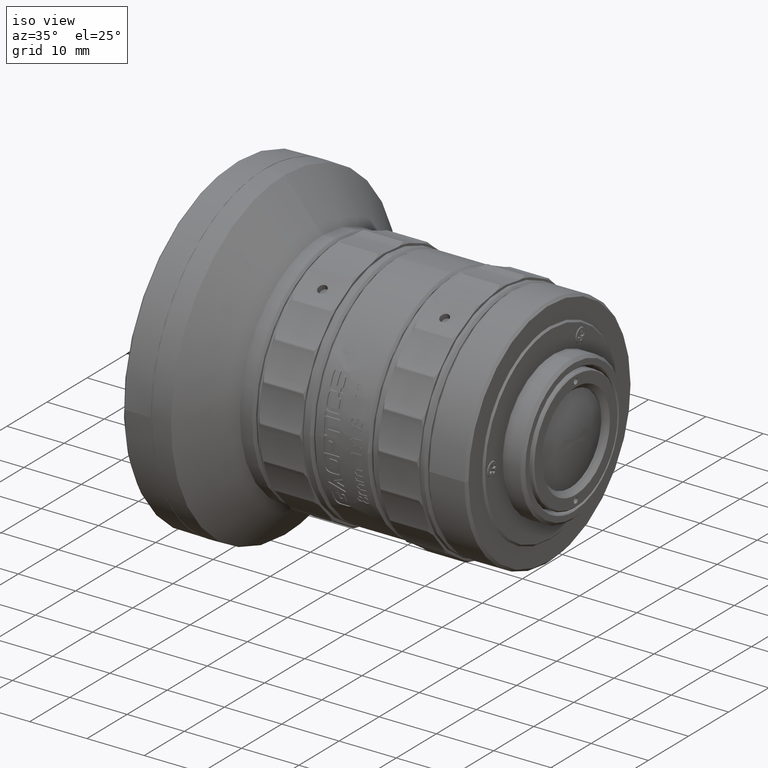
[diagram: clean part render]
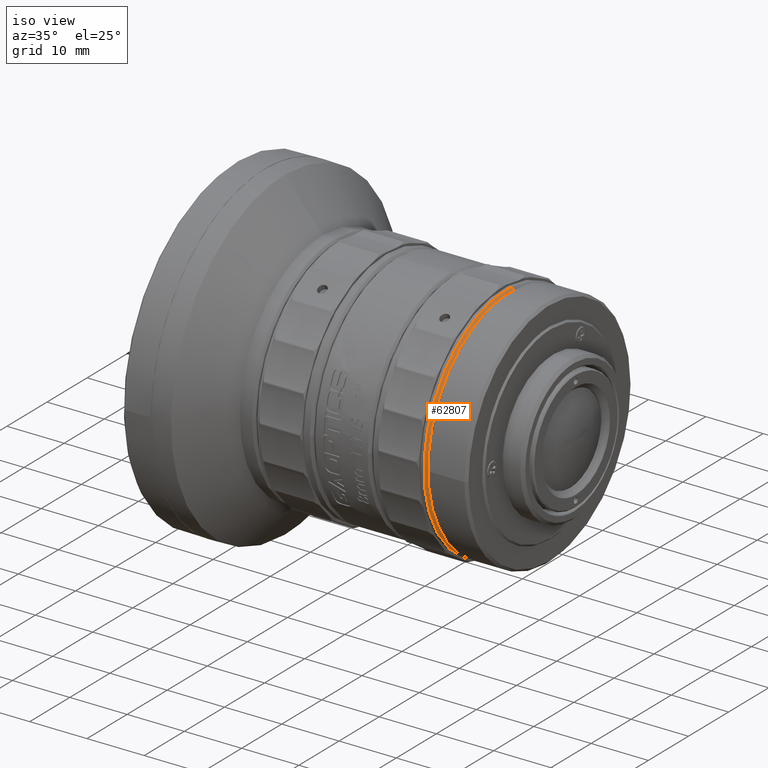
[diagram: same view with one face highlighted and labeled with its STEP entity id]
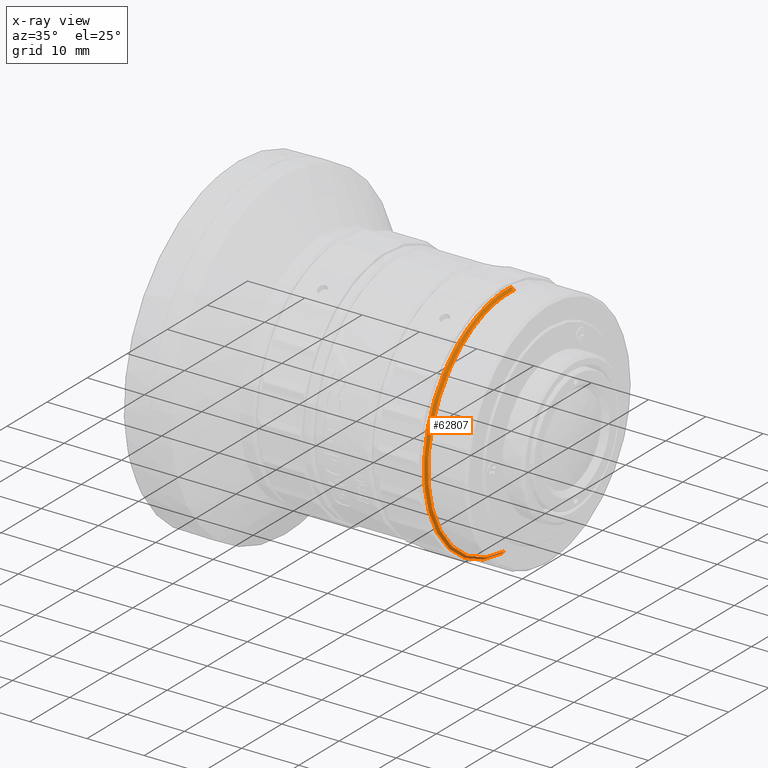
[diagram: x-ray of the same camera — body ghosted, the highlighted face saturated]
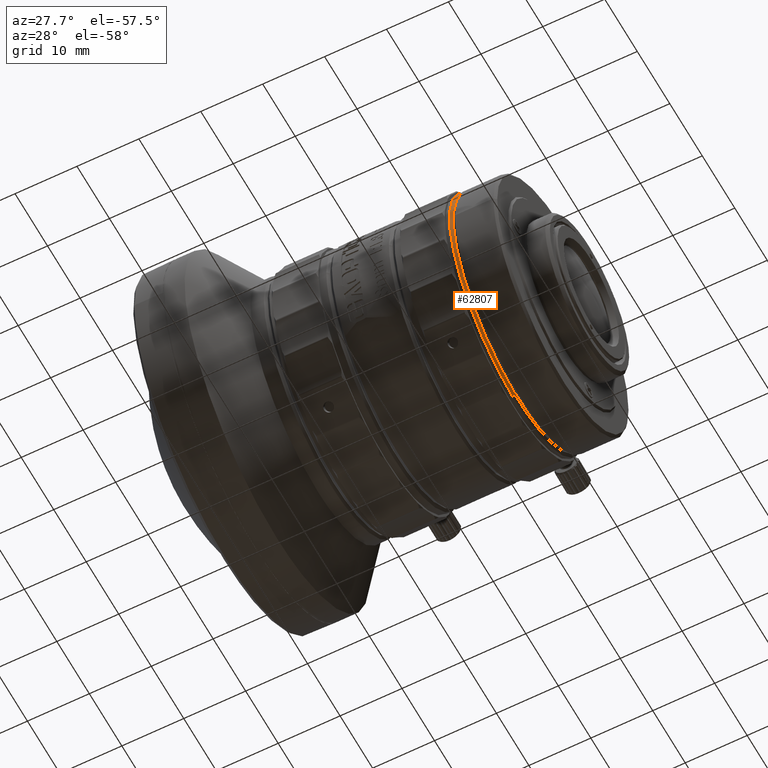
[diagram: same view with one face highlighted and labeled with its STEP entity id]
A machine part, iso view. The second image highlights one B-rep face of the part: STEP entity #62807.
The next image is the same camera in x-ray: the body ghosted, the highlighted face saturated — about 2% of this face is hidden behind the body in this view.
A second angle (auxiliary view) of the same face is appended — the face is thin or edge-on in the first view.
In plain terms, the highlighted face is a freeform B-spline surface patch.
Its self-contained STEP definition (entity closure, byte-faithful):
#1167 = CARTESIAN_POINT ( 'NONE',  ( 44.64000000000000057, -1.179232954356622010, -20.16555006722754584 ) ) ;
#1231 = CARTESIAN_POINT ( 'NONE',  ( 44.64000000000000057, 1.179232947634770046, 20.16555006762059676 ) ) ;
#4321 = VERTEX_POINT ( 'NONE', #46497 ) ;
#5441 = CARTESIAN_POINT ( 'NONE',  ( 44.64000000000000057, -1.179232954356622010, -20.16555006722754584 ) ) ;
#6462 = CARTESIAN_POINT ( 'NONE',  ( 44.24000000000000199, 1.202584095153414134, 20.56486789410800142 ) ) ;
#11662 = CARTESIAN_POINT ( 'NONE',  ( 44.64000000000000057, 1.179232947634770046, 20.16555006762059676 ) ) ;
#11841 = ORIENTED_EDGE ( 'NONE', *, *, #36150, .T. ) ;
#13208 = VERTEX_POINT ( 'NONE', #11662 ) ;
#14205 = VERTEX_POINT ( 'NONE', #70817 ) ;
#17465 = FACE_OUTER_BOUND ( 'NONE', #25936, .T. ) ;
#18547 = EDGE_CURVE ( 'NONE', #4321, #14205, #65316, .T. ) ;
#19725 = EDGE_CURVE ( 'NONE', #65245, #13208, #51683, .T. ) ;
#25013 = CARTESIAN_POINT ( 'NONE',  ( 44.64000000000002899, -41.51033307451758247, -17.80708415736319949 ) ) ;
#25936 = EDGE_LOOP ( 'NONE', ( #11841, #50605, #27463, #68446 ) ) ;
#27463 = ORIENTED_EDGE ( 'NONE', *, *, #55862, .F. ) ;
#29183 = CARTESIAN_POINT ( 'NONE',  ( 44.24000000000000199, 1.202584093306830137, 20.56486789421597194 ) ) ;
#29565 = CARTESIAN_POINT ( 'NONE',  ( 44.64000000000000767, -39.15186717325798327, 22.52401596057785227 ) ) ;
#33139 =( BOUNDED_SURFACE ( )  B_SPLINE_SURFACE ( 1, 3, ( 
 ( #34656, #35815, #29565, #40132 ),
 ( #59283, #76559, #59669, #29183 ) ),
 .UNSPECIFIED., .F., .F., .F. ) 
 B_SPLINE_SURFACE_WITH_KNOTS ( ( 2, 2 ),
 ( 4, 4 ),
 ( 0.000000000000000000, 0.9999999999999830136 ),
 ( 0.000000000000000000, 1.000000000000000000 ),
 .UNSPECIFIED. ) 
 GEOMETRIC_REPRESENTATION_ITEM ( )  RATIONAL_B_SPLINE_SURFACE ( (
 ( 1.000000000000000000, 0.3333333335299311084, 0.3333333335299311084, 1.000000000000000000),
 ( 1.000000000000000000, 0.3333333335299311084, 0.3333333335299311084, 1.000000000000000000) ) ) 
 REPRESENTATION_ITEM ( '' )  SURFACE ( )  );
#34656 = CARTESIAN_POINT ( 'NONE',  ( 44.64000000000000057, -1.179232957272046800, -20.16555007051626802 ) ) ;
#35815 = CARTESIAN_POINT ( 'NONE',  ( 44.64000000000000767, -41.51033307451757537, -17.80708415736318173 ) ) ;
#35945 = CARTESIAN_POINT ( 'NONE',  ( 44.64000000000000057, -39.15186717325801169, 22.52401596057785227 ) ) ;
#36012 = CARTESIAN_POINT ( 'NONE',  ( 44.24000000000000199, 1.202584095153414134, 20.56486789410800142 ) ) ;
#36150 = EDGE_CURVE ( 'NONE', #4321, #13208, #47957, .T. ) ;
#37109 = CARTESIAN_POINT ( 'NONE',  ( 44.24000000000000199, -42.33231986819120607, -18.15969968405356383 ) ) ;
#40132 = CARTESIAN_POINT ( 'NONE',  ( 44.64000000000000057, 1.179232945378541952, 20.16555007121176857 ) ) ;
#46497 = CARTESIAN_POINT ( 'NONE',  ( 44.64000000000000057, -1.179232954356622010, -20.16555006722754584 ) ) ;
#47957 =( BOUNDED_CURVE ( )  B_SPLINE_CURVE ( 3, ( #1167, #25013, #35945, #48468 ),
 .UNSPECIFIED., .F., .F. ) 
 B_SPLINE_CURVE_WITH_KNOTS ( ( 4, 4 ),
 ( -3.141592653589795336, 0.000000000000000000 ),
 .UNSPECIFIED. ) 
 CURVE ( )  GEOMETRIC_REPRESENTATION_ITEM ( )  RATIONAL_B_SPLINE_CURVE ( ( 1.000000000000000000, 0.3333333335299309419, 0.3333333335299309419, 1.000000000000000000 ) ) 
 REPRESENTATION_ITEM ( '' )  );
#48468 = CARTESIAN_POINT ( 'NONE',  ( 44.64000000000000057, 1.179232947634770046, 20.16555006762059676 ) ) ;
#48857 = CARTESIAN_POINT ( 'NONE',  ( 44.24000000000000199, -39.92715167086708306, 22.97003607941107717 ) ) ;
#50605 = ORIENTED_EDGE ( 'NONE', *, *, #19725, .F. ) ;
#51683 = B_SPLINE_CURVE_WITH_KNOTS ( 'NONE', 1,
 ( #36012, #1231 ),
 .UNSPECIFIED., .F., .F.,
 ( 2, 2 ),
 ( -1.000000000000000000, 0.000000000000000000 ),
 .UNSPECIFIED. ) ;
#55862 = EDGE_CURVE ( 'NONE', #14205, #65245, #70477, .T. ) ;
#58589 = CARTESIAN_POINT ( 'NONE',  ( 44.24000000000000199, -1.202584105435849926, -20.56486789350670108 ) ) ;
#59283 = CARTESIAN_POINT ( 'NONE',  ( 44.24000000000000199, -1.202584105435849926, -20.56486789350669753 ) ) ;
#59425 = CARTESIAN_POINT ( 'NONE',  ( 44.24000000000000199, 1.202584095153414134, 20.56486789410800142 ) ) ;
#59669 = CARTESIAN_POINT ( 'NONE',  ( 44.23999999999999488, -39.92715167086708306, 22.97003607941108427 ) ) ;
#62807 = ADVANCED_FACE ( 'NONE', ( #17465 ), #33139, .F. ) ;
#65245 = VERTEX_POINT ( 'NONE', #6462 ) ;
#65316 = B_SPLINE_CURVE_WITH_KNOTS ( 'NONE', 1,
 ( #5441, #58589 ),
 .UNSPECIFIED., .F., .F.,
 ( 2, 2 ),
 ( -1.000000000000000000, 0.000000000000000000 ),
 .UNSPECIFIED. ) ;
#65681 = CARTESIAN_POINT ( 'NONE',  ( 44.24000000000000199, -1.202584105435849926, -20.56486789350670108 ) ) ;
#68446 = ORIENTED_EDGE ( 'NONE', *, *, #18547, .F. ) ;
#70477 =( BOUNDED_CURVE ( )  B_SPLINE_CURVE ( 3, ( #65681, #37109, #48857, #59425 ),
 .UNSPECIFIED., .F., .F. ) 
 B_SPLINE_CURVE_WITH_KNOTS ( ( 4, 4 ),
 ( -3.141592653589795336, 0.000000000000000000 ),
 .UNSPECIFIED. ) 
 CURVE ( )  GEOMETRIC_REPRESENTATION_ITEM ( )  RATIONAL_B_SPLINE_CURVE ( ( 1.000000000000000000, 0.3333333335299309419, 0.3333333335299309419, 1.000000000000000000 ) ) 
 REPRESENTATION_ITEM ( '' )  );
#70817 = CARTESIAN_POINT ( 'NONE',  ( 44.24000000000000199, -1.202584105435849926, -20.56486789350670108 ) ) ;
#76559 = CARTESIAN_POINT ( 'NONE',  ( 44.23999999999999488, -42.33231986819119186, -18.15969968405354606 ) ) ;